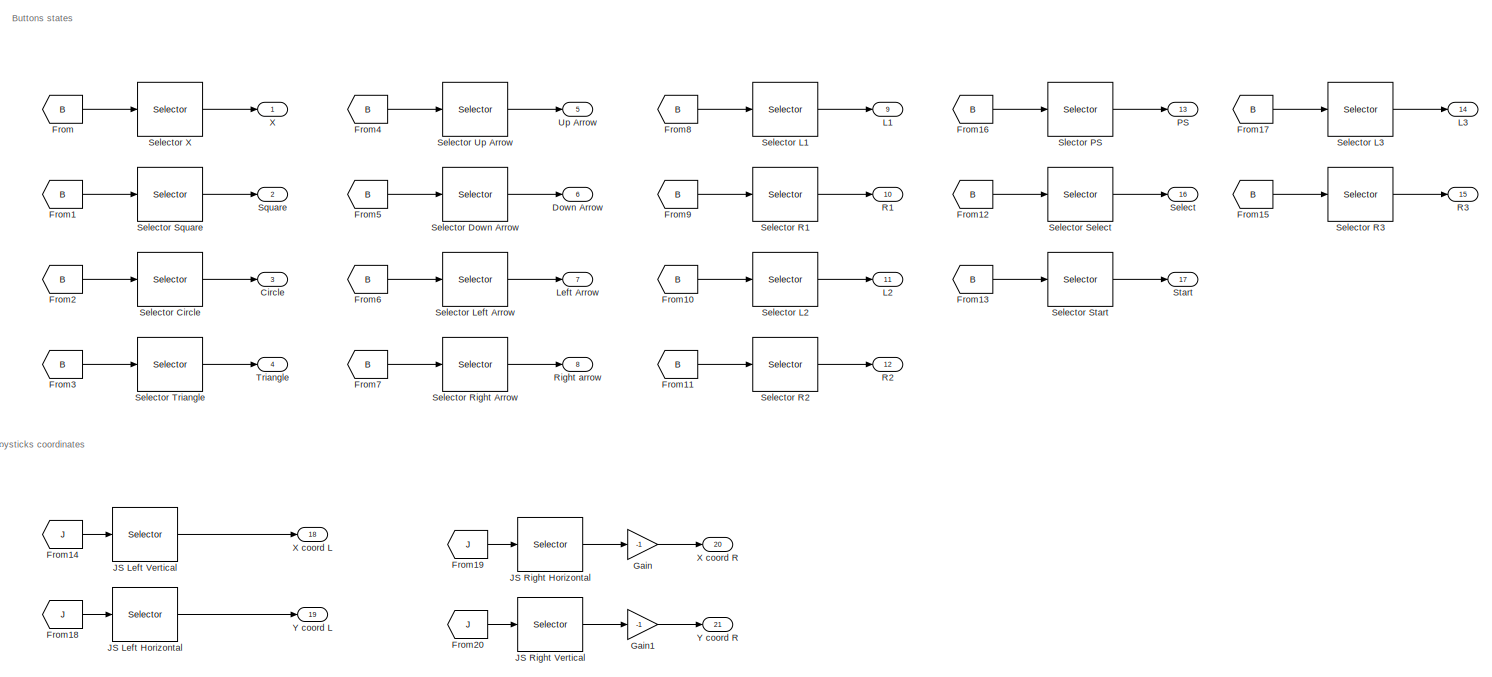
[diagram: root canvas - part 1/2, most of the canvas]
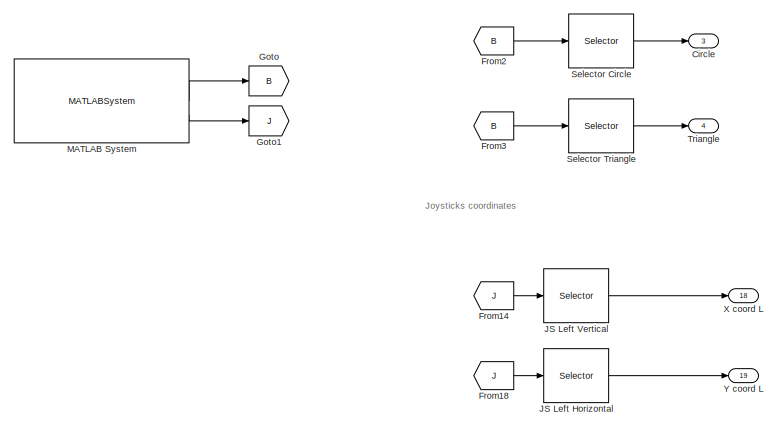
[diagram: root canvas - part 2/2, bottom left region]
MODEL slx_1ddea94844fb
KIND model
CONFIG AbsTol = auto
CONFIG EnableMultiTasking = on
CONFIG FixedStep = auto
CONFIG MaxStep = auto
CONFIG MinStep = auto
CONFIG RelTol = 1e-3
CONFIG SampleTimeConstraint = Unconstrained
CONFIG SolverName = FixedStepAuto
CONFIG StartTime = 0.0
CONFIG StopTime = inf
WORKSPACE source: mxarray member
WORKSPACE SL_ROS_VariableLengthArrays_MaxSizes: object (value not decoded)
BLOCK [Outport] Circle
  Port = 3
BLOCK [Outport] Down Arrow
  Port = 6
BLOCK [From] From
  GotoTag = B
BLOCK [From] From1
  GotoTag = B
BLOCK [From] From10
  GotoTag = B
BLOCK [From] From11
  GotoTag = B
BLOCK [From] From12
  GotoTag = B
BLOCK [From] From13
  GotoTag = B
BLOCK [From] From14
  GotoTag = J
BLOCK [From] From15
  GotoTag = B
BLOCK [From] From16
  GotoTag = B
BLOCK [From] From17
  GotoTag = B
BLOCK [From] From18
  GotoTag = J
BLOCK [From] From19
  GotoTag = J
BLOCK [From] From2
  GotoTag = B
BLOCK [From] From20
  GotoTag = J
BLOCK [From] From3
  GotoTag = B
BLOCK [From] From4
  GotoTag = B
BLOCK [From] From5
  GotoTag = B
BLOCK [From] From6
  GotoTag = B
BLOCK [From] From7
  GotoTag = B
BLOCK [From] From8
  GotoTag = B
BLOCK [From] From9
  GotoTag = B
BLOCK [Gain] Gain
  Gain = -1
BLOCK [Gain] Gain1
  Gain = -1
BLOCK [Goto] Goto
  GotoTag = B
BLOCK [Goto] Goto1
  GotoTag = J
BLOCK [Selector] JS Left Horizontal
  IndexMode = Zero-based
  IndexOptions = Index vector (dialog),Index vector (dialog)
  Indices = 0,0
  InputPortWidth = 3
  NumberOfDimensions = 2
  OutputSizes = 1,1
BLOCK [Selector] JS Left Vertical
  IndexMode = Zero-based
  IndexOptions = Index vector (dialog),Index vector (dialog)
  Indices = 0,1
  InputPortWidth = 3
  NumberOfDimensions = 2
  OutputSizes = 1,1
BLOCK [Selector] JS Right Horizontal
  IndexMode = Zero-based
  IndexOptions = Index vector (dialog),Index vector (dialog)
  Indices = 0,3
  InputPortWidth = 3
  NumberOfDimensions = 2
  OutputSizes = 1,1
BLOCK [Selector] JS Right Vertical
  IndexMode = Zero-based
  IndexOptions = Index vector (dialog),Index vector (dialog)
  Indices = 0,4
  InputPortWidth = 3
  NumberOfDimensions = 2
  OutputSizes = 1,1
BLOCK [Outport] L1
  Port = 9
BLOCK [Outport] L2
  Port = 11
BLOCK [Outport] L3
  Port = 14
BLOCK [Outport] Left Arrow
  Port = 7
BLOCK [MATLABSystem] MATLAB System
  MaskDisplay = disp('PS3');\nport_label('output',1,'buttons');\nport_label('output',2,'axis');
  MaskType = PS3
  SampleTime = 0.01
  System = PS3
BLOCK [Outport] PS
  Port = 13
BLOCK [Outport] R1
  Port = 10
BLOCK [Outport] R2
  Port = 12
BLOCK [Outport] R3
  Port = 15
BLOCK [Outport] Right arrow
  Port = 8
BLOCK [Outport] Select
  Port = 16
BLOCK [Selector] Selector Circle
  IndexMode = Zero-based
  IndexOptions = Index vector (dialog),Index vector (dialog)
  Indices = 0,1
  InputPortWidth = 3
  NumberOfDimensions = 2
  OutputSizes = 1,1
BLOCK [Selector] Selector Down Arrow
  IndexMode = Zero-based
  IndexOptions = Index vector (dialog),Index vector (dialog)
  Indices = 0,14
  InputPortWidth = 3
  NumberOfDimensions = 2
  OutputSizes = 1,1
BLOCK [Selector] Selector L1
  IndexMode = Zero-based
  IndexOptions = Index vector (dialog),Index vector (dialog)
  Indices = 0,4
  InputPortWidth = 3
  NumberOfDimensions = 2
  OutputSizes = 1,1
BLOCK [Selector] Selector L2
  IndexMode = Zero-based
  IndexOptions = Index vector (dialog),Index vector (dialog)
  Indices = 0,6
  InputPortWidth = 3
  NumberOfDimensions = 2
  OutputSizes = 1,1
BLOCK [Selector] Selector L3
  IndexMode = Zero-based
  IndexOptions = Index vector (dialog),Index vector (dialog)
  Indices = 0,11
  InputPortWidth = 3
  NumberOfDimensions = 2
  OutputSizes = 1,1
BLOCK [Selector] Selector Left Arrow
  IndexMode = Zero-based
  IndexOptions = Index vector (dialog),Index vector (dialog)
  Indices = 0,15
  InputPortWidth = 3
  NumberOfDimensions = 2
  OutputSizes = 1,1
BLOCK [Selector] Selector R1
  IndexMode = Zero-based
  IndexOptions = Index vector (dialog),Index vector (dialog)
  Indices = 0,5
  InputPortWidth = 3
  NumberOfDimensions = 2
  OutputSizes = 1,1
BLOCK [Selector] Selector R2
  IndexMode = Zero-based
  IndexOptions = Index vector (dialog),Index vector (dialog)
  Indices = 0,7
  InputPortWidth = 3
  NumberOfDimensions = 2
  OutputSizes = 1,1
BLOCK [Selector] Selector R3
  IndexMode = Zero-based
  IndexOptions = Index vector (dialog),Index vector (dialog)
  Indices = 0,12
  InputPortWidth = 3
  NumberOfDimensions = 2
  OutputSizes = 1,1
BLOCK [Selector] Selector Right Arrow
  IndexMode = Zero-based
  IndexOptions = Index vector (dialog),Index vector (dialog)
  Indices = 0,16
  InputPortWidth = 3
  NumberOfDimensions = 2
  OutputSizes = 1,1
BLOCK [Selector] Selector Select
  IndexMode = Zero-based
  IndexOptions = Index vector (dialog),Index vector (dialog)
  Indices = 0,8
  InputPortWidth = 3
  NumberOfDimensions = 2
  OutputSizes = 1,1
BLOCK [Selector] Selector Square
  IndexMode = Zero-based
  IndexOptions = Index vector (dialog),Index vector (dialog)
  Indices = 0,3
  InputPortWidth = 3
  NumberOfDimensions = 2
  OutputSizes = 1,1
BLOCK [Selector] Selector Start
  IndexMode = Zero-based
  IndexOptions = Index vector (dialog),Index vector (dialog)
  Indices = 0,9
  InputPortWidth = 3
  NumberOfDimensions = 2
  OutputSizes = 1,1
BLOCK [Selector] Selector Triangle
  IndexMode = Zero-based
  IndexOptions = Index vector (dialog),Index vector (dialog)
  Indices = 0,2
  InputPortWidth = 3
  NumberOfDimensions = 2
  OutputSizes = 1,1
BLOCK [Selector] Selector Up Arrow
  IndexMode = Zero-based
  IndexOptions = Index vector (dialog),Index vector (dialog)
  Indices = 0,13
  InputPortWidth = 3
  NumberOfDimensions = 2
  OutputSizes = 1,1
BLOCK [Selector] Selector X
  IndexMode = Zero-based
  IndexOptions = Index vector (dialog),Index vector (dialog)
  Indices = 0,0
  InputPortWidth = 3
  NumberOfDimensions = 2
  OutputSizes = 1,1
BLOCK [Selector] Slector PS
  IndexMode = Zero-based
  IndexOptions = Index vector (dialog),Index vector (dialog)
  Indices = 0,10
  InputPortWidth = 3
  NumberOfDimensions = 2
  OutputSizes = 1,1
BLOCK [Outport] Square
  Port = 2
BLOCK [Outport] Start
  Port = 17
BLOCK [Outport] Triangle
  Port = 4
BLOCK [Outport] Up Arrow
  Port = 5
BLOCK [Outport] X
BLOCK [Outport] X coord L
  Port = 18
BLOCK [Outport] X coord R
  Port = 20
BLOCK [Outport] Y coord L
  Port = 19
BLOCK [Outport] Y coord R
  Port = 21
ANNOTATION (root): Buttons states
ANNOTATION (root): Joysticks coordinates
LINE From10:1 -> Selector L2:1
LINE From11:1 -> Selector R2:1
LINE From12:1 -> Selector Select:1
LINE From13:1 -> Selector Start:1
LINE From14:1 -> JS Left Vertical:1
LINE From15:1 -> Selector R3:1
LINE From16:1 -> Slector PS:1
LINE From17:1 -> Selector L3:1
LINE From18:1 -> JS Left Horizontal:1
LINE From19:1 -> JS Right Horizontal:1
LINE From1:1 -> Selector Square:1
LINE From20:1 -> JS Right Vertical:1
LINE From2:1 -> Selector Circle:1
LINE From3:1 -> Selector Triangle:1
LINE From4:1 -> Selector Up Arrow:1
LINE From5:1 -> Selector Down Arrow:1
LINE From6:1 -> Selector Left Arrow:1
LINE From7:1 -> Selector Right Arrow:1
LINE From8:1 -> Selector L1:1
LINE From9:1 -> Selector R1:1
LINE From:1 -> Selector X:1
LINE Gain1:1 -> Y coord R:1
LINE Gain:1 -> X coord R:1
LINE JS Left Horizontal:1 -> Y coord L:1
LINE JS Left Vertical:1 -> X coord L:1
LINE JS Right Horizontal:1 -> Gain:1
LINE JS Right Vertical:1 -> Gain1:1
LINE MATLAB System:1 -> Goto:1
LINE MATLAB System:2 -> Goto1:1
LINE Selector Circle:1 -> Circle:1
LINE Selector Down Arrow:1 -> Down Arrow:1
LINE Selector L1:1 -> L1:1
LINE Selector L2:1 -> L2:1
LINE Selector L3:1 -> L3:1
LINE Selector Left Arrow:1 -> Left Arrow:1
LINE Selector R1:1 -> R1:1
LINE Selector R2:1 -> R2:1
LINE Selector R3:1 -> R3:1
LINE Selector Right Arrow:1 -> Right arrow:1
LINE Selector Select:1 -> Select:1
LINE Selector Square:1 -> Square:1
LINE Selector Start:1 -> Start:1
LINE Selector Triangle:1 -> Triangle:1
LINE Selector Up Arrow:1 -> Up Arrow:1
LINE Selector X:1 -> X:1
LINE Slector PS:1 -> PS:1
